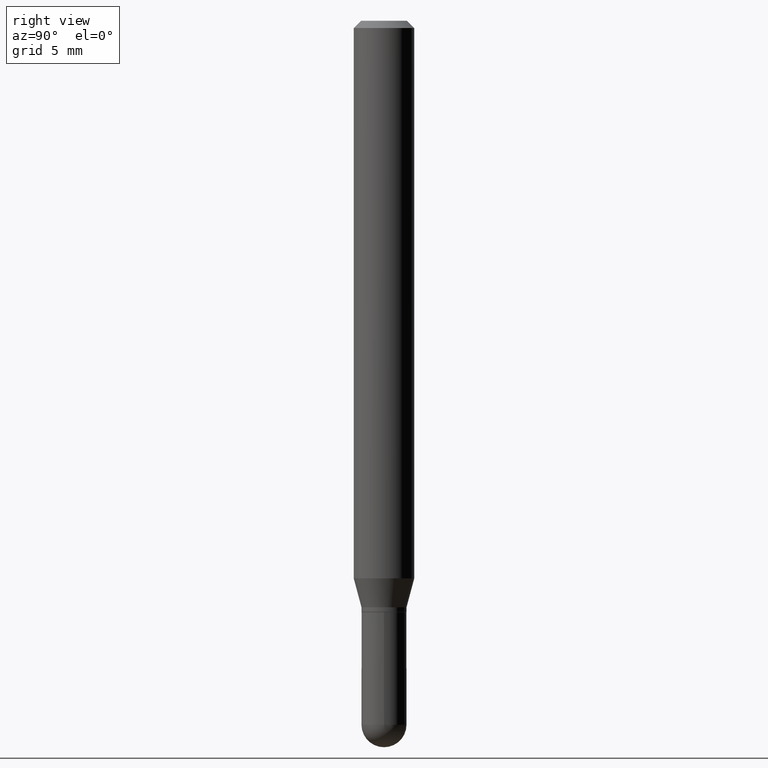
[diagram: clean part render]
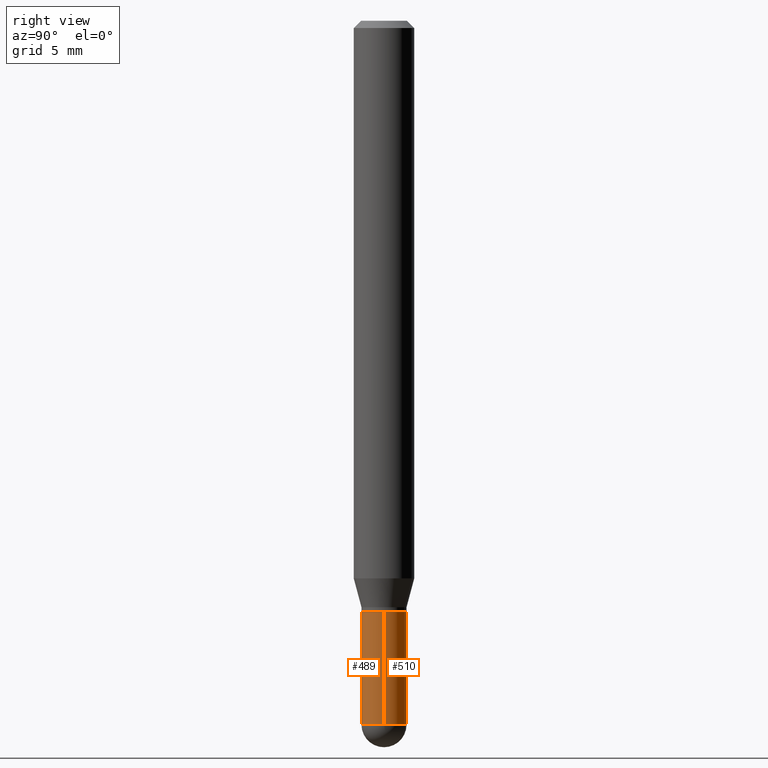
[diagram: same view with one multi-face feature highlighted, each face labeled with its STEP entity id]
A machine part, right view. The highlighted faces form ONE feature: a constant-radius fillet chain: 2 tangent blend faces with common blend radius 1.1811 mm. The faces share edges in the B-rep.
Their STEP definitions:
[1] entity #510 (Cylinder):
#4 = EDGE_CURVE ( 'NONE', #146, #260, #88, .T. ) ;
#8 = VECTOR ( 'NONE', #499, 39.37007874015748143 ) ;
#11 = VERTEX_POINT ( 'NONE', #15 ) ;
#15 = CARTESIAN_POINT ( 'NONE',  ( -0.04649999999999999967, -4.338581048239549797E-15, -1.453500000000000236 ) ) ;
#20 = DIRECTION ( 'NONE',  ( 1.000000000000000000, -6.982962677686260400E-15, 0.000000000000000000 ) ) ;
#25 = FACE_OUTER_BOUND ( 'NONE', #491, .T. ) ;
#40 = ORIENTED_EDGE ( 'NONE', *, *, #213, .T. ) ;
#48 = DIRECTION ( 'NONE',  ( -2.445468806185136597E-29, 3.491481338843145583E-15, 1.000000000000000000 ) ) ;
#62 = AXIS2_PLACEMENT_3D ( 'NONE', #140, #369, #297 ) ;
#71 = CYLINDRICAL_SURFACE ( 'NONE', #280, 0.04649999999999999967 ) ;
#88 = CIRCLE ( 'NONE', #62, 0.04649999999999999967 ) ;
#112 = CARTESIAN_POINT ( 'NONE',  ( 0.04649999999999999967, -4.993691184880407779E-15, -1.453500000000000236 ) ) ;
#128 = DIRECTION ( 'NONE',  ( -2.445468806185136877E-29, 3.491481338843145188E-15, 1.000000000000000000 ) ) ;
#136 = DIRECTION ( 'NONE',  ( -2.445468806185136597E-29, 3.491481338843145583E-15, 1.000000000000000000 ) ) ;
#140 = CARTESIAN_POINT ( 'NONE',  ( 2.985917412352052273E-29, -4.263098714727481320E-15, -1.221000000000000085 ) ) ;
#146 = VERTEX_POINT ( 'NONE', #156 ) ;
#156 = CARTESIAN_POINT ( 'NONE',  ( 0.04649999999999999967, -4.587806479239892817E-15, -1.221000000000000085 ) ) ;
#162 = VECTOR ( 'NONE', #128, 39.37007874015748143 ) ;
#174 = LINE ( 'NONE', #325, #8 ) ;
#213 = EDGE_CURVE ( 'NONE', #11, #260, #292, .T. ) ;
#216 = CARTESIAN_POINT ( 'NONE',  ( -0.04649999999999999967, 3.304023721284465841E-16, -2.287304816968531530E-30 ) ) ;
#225 = DIRECTION ( 'NONE',  ( 1.000000000000000000, -6.982962677686267499E-15, 4.876176775795936353E-29 ) ) ;
#242 = EDGE_CURVE ( 'NONE', #356, #11, #263, .T. ) ;
#244 = CARTESIAN_POINT ( 'NONE',  ( 3.304023721284823786E-16, 0.04649999999999496897, -1.453500000000000458 ) ) ;
#248 = ORIENTED_EDGE ( 'NONE', *, *, #4, .F. ) ;
#252 = CARTESIAN_POINT ( 'NONE',  ( 3.554488909790096218E-29, -5.074868126008512823E-15, -1.453500000000000236 ) ) ;
#260 = VERTEX_POINT ( 'NONE', #447 ) ;
#263 = CIRCLE ( 'NONE', #469, 0.04649999999999999967 ) ;
#274 = EDGE_CURVE ( 'NONE', #497, #356, #503, .T. ) ;
#279 = AXIS2_PLACEMENT_3D ( 'NONE', #252, #48, #361 ) ;
#280 = AXIS2_PLACEMENT_3D ( 'NONE', #308, #462, #225 ) ;
#292 = LINE ( 'NONE', #216, #162 ) ;
#297 = DIRECTION ( 'NONE',  ( 1.000000000000000000, -6.982962677686260400E-15, 0.000000000000000000 ) ) ;
#303 = ORIENTED_EDGE ( 'NONE', *, *, #397, .F. ) ;
#308 = CARTESIAN_POINT ( 'NONE',  ( 0.000000000000000000, 0.000000000000000000, 0.000000000000000000 ) ) ;
#325 = CARTESIAN_POINT ( 'NONE',  ( 0.04649999999999999967, -3.247077645124114474E-16, 2.267422200745110326E-30 ) ) ;
#356 = VERTEX_POINT ( 'NONE', #244 ) ;
#361 = DIRECTION ( 'NONE',  ( 1.000000000000000000, -6.982962677686260400E-15, 0.000000000000000000 ) ) ;
#369 = DIRECTION ( 'NONE',  ( -2.445468806185136597E-29, 3.491481338843145583E-15, 1.000000000000000000 ) ) ;
#370 = CARTESIAN_POINT ( 'NONE',  ( 3.554488909790096218E-29, -5.074868126008512823E-15, -1.453500000000000236 ) ) ;
#397 = EDGE_CURVE ( 'NONE', #497, #146, #174, .T. ) ;
#414 = ORIENTED_EDGE ( 'NONE', *, *, #242, .T. ) ;
#434 = ORIENTED_EDGE ( 'NONE', *, *, #274, .T. ) ;
#447 = CARTESIAN_POINT ( 'NONE',  ( -0.04649999999999999967, -4.338581048239549797E-15, -1.221000000000000085 ) ) ;
#462 = DIRECTION ( 'NONE',  ( -2.445468806185136597E-29, 3.491481338843145583E-15, 1.000000000000000000 ) ) ;
#469 = AXIS2_PLACEMENT_3D ( 'NONE', #370, #136, #20 ) ;
#491 = EDGE_LOOP ( 'NONE', ( #414, #40, #248, #303, #434 ) ) ;
#497 = VERTEX_POINT ( 'NONE', #112 ) ;
#499 = DIRECTION ( 'NONE',  ( -2.445468806185136877E-29, 3.491481338843145188E-15, 1.000000000000000000 ) ) ;
#503 = CIRCLE ( 'NONE', #279, 0.04649999999999999967 ) ;
#510 = ADVANCED_FACE ( 'NONE', ( #25 ), #71, .T. ) ;
[2] entity #489 (Cylinder):
#1 = EDGE_LOOP ( 'NONE', ( #440, #164, #107, #219, #493 ) ) ;
#8 = VECTOR ( 'NONE', #499, 39.37007874015748143 ) ;
#11 = VERTEX_POINT ( 'NONE', #15 ) ;
#15 = CARTESIAN_POINT ( 'NONE',  ( -0.04649999999999999967, -4.338581048239549797E-15, -1.453500000000000236 ) ) ;
#16 = EDGE_CURVE ( 'NONE', #405, #497, #435, .T. ) ;
#34 = AXIS2_PLACEMENT_3D ( 'NONE', #175, #321, #368 ) ;
#50 = CIRCLE ( 'NONE', #339, 0.04649999999999999967 ) ;
#107 = ORIENTED_EDGE ( 'NONE', *, *, #16, .T. ) ;
#112 = CARTESIAN_POINT ( 'NONE',  ( 0.04649999999999999967, -4.993691184880407779E-15, -1.453500000000000236 ) ) ;
#128 = DIRECTION ( 'NONE',  ( -2.445468806185136877E-29, 3.491481338843145188E-15, 1.000000000000000000 ) ) ;
#146 = VERTEX_POINT ( 'NONE', #156 ) ;
#148 = CARTESIAN_POINT ( 'NONE',  ( -3.247077645123761459E-16, -0.04650000000000512751, -1.453500000000000014 ) ) ;
#156 = CARTESIAN_POINT ( 'NONE',  ( 0.04649999999999999967, -4.587806479239892817E-15, -1.221000000000000085 ) ) ;
#162 = VECTOR ( 'NONE', #128, 39.37007874015748143 ) ;
#164 = ORIENTED_EDGE ( 'NONE', *, *, #383, .T. ) ;
#174 = LINE ( 'NONE', #325, #8 ) ;
#175 = CARTESIAN_POINT ( 'NONE',  ( 2.985917412352052273E-29, -4.263098714727481320E-15, -1.221000000000000085 ) ) ;
#176 = DIRECTION ( 'NONE',  ( -2.445468806185136597E-29, 3.491481338843145583E-15, 1.000000000000000000 ) ) ;
#183 = CARTESIAN_POINT ( 'NONE',  ( 0.000000000000000000, 0.000000000000000000, 0.000000000000000000 ) ) ;
#193 = CIRCLE ( 'NONE', #34, 0.04649999999999999967 ) ;
#212 = DIRECTION ( 'NONE',  ( 1.000000000000000000, -6.982962677686260400E-15, 0.000000000000000000 ) ) ;
#213 = EDGE_CURVE ( 'NONE', #11, #260, #292, .T. ) ;
#216 = CARTESIAN_POINT ( 'NONE',  ( -0.04649999999999999967, 3.304023721284465841E-16, -2.287304816968531530E-30 ) ) ;
#219 = ORIENTED_EDGE ( 'NONE', *, *, #397, .T. ) ;
#221 = FACE_OUTER_BOUND ( 'NONE', #1, .T. ) ;
#246 = DIRECTION ( 'NONE',  ( 1.000000000000000000, -6.982962677686260400E-15, 0.000000000000000000 ) ) ;
#260 = VERTEX_POINT ( 'NONE', #447 ) ;
#291 = EDGE_CURVE ( 'NONE', #260, #146, #193, .T. ) ;
#292 = LINE ( 'NONE', #216, #162 ) ;
#294 = CARTESIAN_POINT ( 'NONE',  ( 3.554488909790096218E-29, -5.074868126008512823E-15, -1.453500000000000236 ) ) ;
#305 = DIRECTION ( 'NONE',  ( -2.445468806185136597E-29, 3.491481338843145583E-15, 1.000000000000000000 ) ) ;
#321 = DIRECTION ( 'NONE',  ( -2.445468806185136597E-29, 3.491481338843145583E-15, 1.000000000000000000 ) ) ;
#325 = CARTESIAN_POINT ( 'NONE',  ( 0.04649999999999999967, -3.247077645124114474E-16, 2.267422200745110326E-30 ) ) ;
#339 = AXIS2_PLACEMENT_3D ( 'NONE', #294, #449, #246 ) ;
#368 = DIRECTION ( 'NONE',  ( 1.000000000000000000, -6.982962677686260400E-15, 0.000000000000000000 ) ) ;
#383 = EDGE_CURVE ( 'NONE', #11, #405, #50, .T. ) ;
#397 = EDGE_CURVE ( 'NONE', #497, #146, #174, .T. ) ;
#405 = VERTEX_POINT ( 'NONE', #148 ) ;
#435 = CIRCLE ( 'NONE', #461, 0.04649999999999999967 ) ;
#440 = ORIENTED_EDGE ( 'NONE', *, *, #213, .F. ) ;
#447 = CARTESIAN_POINT ( 'NONE',  ( -0.04649999999999999967, -4.338581048239549797E-15, -1.221000000000000085 ) ) ;
#448 = CARTESIAN_POINT ( 'NONE',  ( 3.554488909790096218E-29, -5.074868126008512823E-15, -1.453500000000000236 ) ) ;
#449 = DIRECTION ( 'NONE',  ( -2.445468806185136597E-29, 3.491481338843145583E-15, 1.000000000000000000 ) ) ;
#453 = AXIS2_PLACEMENT_3D ( 'NONE', #183, #305, #459 ) ;
#457 = CYLINDRICAL_SURFACE ( 'NONE', #453, 0.04649999999999999967 ) ;
#459 = DIRECTION ( 'NONE',  ( 1.000000000000000000, -6.982962677686267499E-15, 4.876176775795936353E-29 ) ) ;
#461 = AXIS2_PLACEMENT_3D ( 'NONE', #448, #176, #212 ) ;
#489 = ADVANCED_FACE ( 'NONE', ( #221 ), #457, .T. ) ;
#493 = ORIENTED_EDGE ( 'NONE', *, *, #291, .F. ) ;
#497 = VERTEX_POINT ( 'NONE', #112 ) ;
#499 = DIRECTION ( 'NONE',  ( -2.445468806185136877E-29, 3.491481338843145188E-15, 1.000000000000000000 ) ) ;